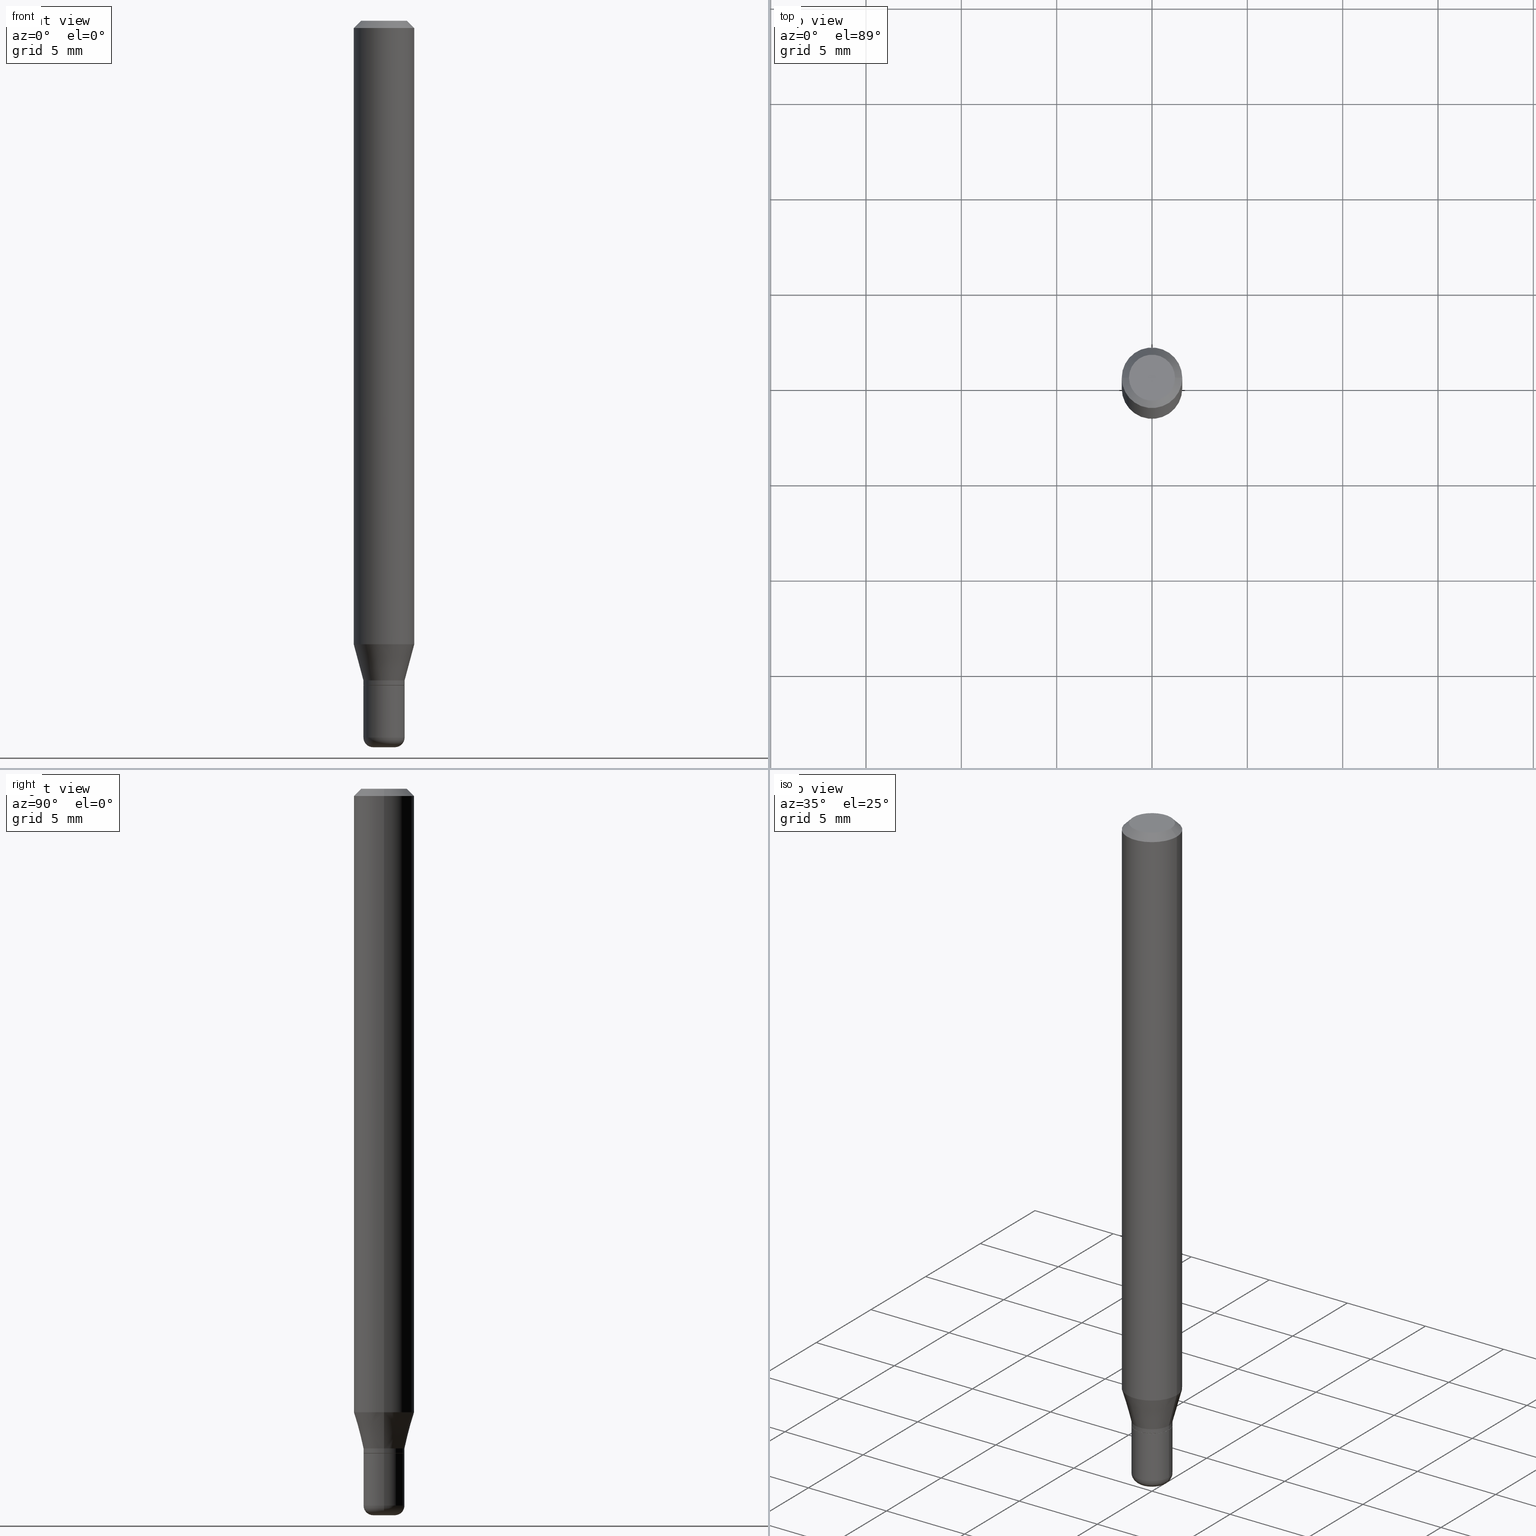
[diagram: canonical four-view strip — front | top / right | iso, engineering-drawing reading convention]
A machine part, canonical four-view strip (front | top / right | iso — engineering-drawing reading convention). The complete STEP part file that produces these views, byte-faithful:
ISO-10303-21;
HEADER;
FILE_DESCRIPTION (( 'STEP AP203' ),
    '1' );
FILE_NAME ('09198.STEP',
    '2024-02-29T23:17:37',
    ( '' ),
    ( '' ),
    'SwSTEP 2.0',
    'SolidWorks 2023',
    '' );
FILE_SCHEMA (( 'CONFIG_CONTROL_DESIGN' ));
ENDSEC;

DATA;
#1 = ORIENTED_EDGE ( 'NONE', *, *, #350, .T. ) ;
#2 =( CONVERSION_BASED_UNIT ( 'INCH', #153 ) LENGTH_UNIT ( ) NAMED_UNIT ( #40 ) );
#3 = CARTESIAN_POINT ( 'NONE',  ( 0.000000000000000000, 0.000000000000000000, 0.000000000000000000 ) ) ;
#4 = EDGE_CURVE ( 'NONE', #19, #285, #507, .T. ) ;
#5 = EDGE_LOOP ( 'NONE', ( #88, #128 ) ) ;
#6 = DIRECTION ( 'NONE',  ( 1.000000000000000000, -6.982962677686266711E-15, 4.876176775795935793E-29 ) ) ;
#7 = ORIENTED_EDGE ( 'NONE', *, *, #394, .T. ) ;
#8 = AXIS2_PLACEMENT_3D ( 'NONE', #168, #364, #315 ) ;
#9 = CYLINDRICAL_SURFACE ( 'NONE', #460, 0.04250000000000001693 ) ;
#10 = ORIENTED_EDGE ( 'NONE', *, *, #205, .F. ) ;
#11 = VERTEX_POINT ( 'NONE', #334 ) ;
#12 = PERSON_AND_ORGANIZATION ( #494, #333 ) ;
#13 = DIRECTION ( 'NONE',  ( -2.445468806185136597E-29, 3.491481338843145583E-15, 1.000000000000000000 ) ) ;
#14 = AXIS2_PLACEMENT_3D ( 'NONE', #197, #355, #515 ) ;
#15 = CARTESIAN_POINT ( 'NONE',  ( 3.619293833154002365E-29, -5.167392381487854879E-15, -1.479999999999999982 ) ) ;
#16 = ORIENTED_EDGE ( 'NONE', *, *, #129, .T. ) ;
#17 = DIRECTION ( 'NONE',  ( -2.445468806185136597E-29, 3.491481338843145583E-15, 1.000000000000000000 ) ) ;
#18 = EDGE_CURVE ( 'NONE', #169, #291, #143, .T. ) ;
#19 = VERTEX_POINT ( 'NONE', #298 ) ;
#20 = EDGE_LOOP ( 'NONE', ( #209, #210, #184, #46 ) ) ;
#21 = CIRCLE ( 'NONE', #310, 0.04200000000000001649 ) ;
#22 = AXIS2_PLACEMENT_3D ( 'NONE', #420, #253, #112 ) ;
#23 = EDGE_LOOP ( 'NONE', ( #257, #213, #276, #42 ) ) ;
#24 = EDGE_CURVE ( 'NONE', #169, #430, #331, .T. ) ;
#25 = CARTESIAN_POINT ( 'NONE',  ( 3.148196237364002379E-29, -4.494789868499541434E-15, -1.287358983848622795 ) ) ;
#26 = CALENDAR_DATE ( 2024, 29, 2 ) ;
#27 = CARTESIAN_POINT ( 'NONE',  ( 3.582686580359766038E-29, -5.359686688179453325E-15, -1.500000000000000222 ) ) ;
#28 = CARTESIAN_POINT ( 'NONE',  ( 3.668203209277632395E-31, -5.237222008264614861E-17, -0.01499999999999970281 ) ) ;
#29 = CLOSED_SHELL ( 'NONE', ( #188, #473, #299, #505, #279, #274 ) ) ;
#30 = FACE_OUTER_BOUND ( 'NONE', #471, .T. ) ;
#31 = VERTEX_POINT ( 'NONE', #421 ) ;
#32 = DIRECTION ( 'NONE',  ( 1.000000000000000000, -6.982962677686260400E-15, 0.000000000000000000 ) ) ;
#33 = LINE ( 'NONE', #517, #125 ) ;
#34 = DIRECTION ( 'NONE',  ( -2.445468806185136597E-29, 3.491481338843145583E-15, 1.000000000000000000 ) ) ;
#35 = AXIS2_PLACEMENT_3D ( 'NONE', #503, #61, #107 ) ;
#36 = VECTOR ( 'NONE', #319, 39.37007874015748143 ) ;
#37 = CC_DESIGN_APPROVAL ( #389, ( #313 ) ) ;
#38 = ORIENTED_EDGE ( 'NONE', *, *, #166, .F. ) ;
#39 = ADVANCED_FACE ( 'NONE', ( #173 ), #309, .T. ) ;
#40 = DIMENSIONAL_EXPONENTS ( 1.000000000000000000, 0.000000000000000000, 0.000000000000000000, 0.000000000000000000, 0.000000000000000000, 0.000000000000000000, 0.000000000000000000 ) ;
#41 = CARTESIAN_POINT ( 'NONE',  ( 3.619293833154002365E-29, -5.167392381487854879E-15, -1.479999999999999982 ) ) ;
#42 = ORIENTED_EDGE ( 'NONE', *, *, #74, .F. ) ;
#43 = VERTEX_POINT ( 'NONE', #498 ) ;
#44 = CARTESIAN_POINT ( 'NONE',  ( 0.04250000000000002387, -2.967759138016665521E-16, 2.072375129713273903E-30 ) ) ;
#45 = EDGE_CURVE ( 'NONE', #291, #94, #109, .T. ) ;
#46 = ORIENTED_EDGE ( 'NONE', *, *, #4, .F. ) ;
#47 = CIRCLE ( 'NONE', #216, 0.02000000000000003511 ) ;
#48 = COORDINATED_UNIVERSAL_TIME_OFFSET ( 5, 0, .BEHIND. ) ;
#49 = ORIENTED_EDGE ( 'NONE', *, *, #189, .T. ) ;
#50 = DIRECTION ( 'NONE',  ( 1.000000000000000000, 0.000000000000000000, 0.000000000000000000 ) ) ;
#51 = CC_DESIGN_PERSON_AND_ORGANIZATION_ASSIGNMENT ( #268, #65, ( #313 ) ) ;
#52 = ORIENTED_EDGE ( 'NONE', *, *, #189, .F. ) ;
#53 = DATE_AND_TIME ( #452, #323 ) ;
#54 = DIRECTION ( 'NONE',  ( 1.000000000000000000, -6.982962677686266711E-15, 4.876176775795935793E-29 ) ) ;
#55 = CC_DESIGN_PERSON_AND_ORGANIZATION_ASSIGNMENT ( #191, #261, ( #77 ) ) ;
#56 = CARTESIAN_POINT ( 'NONE',  ( 3.668203209277632395E-31, -5.237222008264614861E-17, -0.01499999999999970281 ) ) ;
#57 = CIRCLE ( 'NONE', #14, 0.04200000000000001649 ) ;
#58 = ADVANCED_FACE ( 'NONE', ( #337 ), #97, .T. ) ;
#59 = FACE_OUTER_BOUND ( 'NONE', #23, .T. ) ;
#60 = DIRECTION ( 'NONE',  ( 2.445468806185136597E-29, -3.491481338843145583E-15, -1.000000000000000000 ) ) ;
#61 = DIRECTION ( 'NONE',  ( -2.445468806185136597E-29, 3.491481338843145583E-15, 1.000000000000000000 ) ) ;
#62 = EDGE_CURVE ( 'NONE', #163, #43, #137, .T. ) ;
#63 = EDGE_CURVE ( 'NONE', #43, #94, #139, .T. ) ;
#64 = ORIENTED_EDGE ( 'NONE', *, *, #18, .F. ) ;
#65 = PERSON_AND_ORGANIZATION_ROLE ( 'classification_officer' ) ;
#66 = CIRCLE ( 'NONE', #208, 0.04249999999999999611 ) ;
#67 = CARTESIAN_POINT ( 'NONE',  ( -0.04250000000000003081, -4.252058789727899918E-15, -1.362000000000000099 ) ) ;
#68 = PERSON_AND_ORGANIZATION_ROLE ( 'design_supplier' ) ;
#69 = DIRECTION ( 'NONE',  ( -2.445468806185136597E-29, 3.491481338843145583E-15, 1.000000000000000000 ) ) ;
#70 = MANIFOLD_SOLID_BREP ( 'Body-Move/Copy2[2]', #264 ) ;
#71 = APPROVAL_STATUS ( 'not_yet_approved' ) ;
#72 = DIRECTION ( 'NONE',  ( 1.000000000000000000, -6.982962677686262766E-15, 0.000000000000000000 ) ) ;
#73 = PLANE ( 'NONE',  #22 ) ;
#74 = EDGE_CURVE ( 'NONE', #98, #11, #271, .T. ) ;
#75 = EDGE_CURVE ( 'NONE', #317, #98, #412, .T. ) ;
#76 = AXIS2_PLACEMENT_3D ( 'NONE', #366, #89, #281 ) ;
#77 = PRODUCT_DEFINITION_FORMATION_WITH_SPECIFIED_SOURCE ( 'ANY', '', #428, .NOT_KNOWN. ) ;
#78 = ORIENTED_EDGE ( 'NONE', *, *, #24, .T. ) ;
#79 = CARTESIAN_POINT ( 'NONE',  ( 0.000000000000000000, 0.000000000000000000, 0.000000000000000000 ) ) ;
#80 = DIRECTION ( 'NONE',  ( -2.445468806185136597E-29, 3.491481338843145583E-15, 1.000000000000000000 ) ) ;
#81 = CARTESIAN_POINT ( 'NONE',  ( 3.668203209277704895E-29, -5.237222008264718177E-15, -1.500000000000000222 ) ) ;
#82 = DIRECTION ( 'NONE',  ( 1.000000000000000000, -6.982962677686269866E-15, 0.000000000000000000 ) ) ;
#83 = EDGE_CURVE ( 'NONE', #31, #126, #21, .T. ) ;
#84 = ORIENTED_EDGE ( 'NONE', *, *, #113, .F. ) ;
#85 =( NAMED_UNIT ( * ) SI_UNIT ( $, .STERADIAN. ) SOLID_ANGLE_UNIT ( ) );
#86 = FACE_OUTER_BOUND ( 'NONE', #387, .T. ) ;
#87 = AXIS2_PLACEMENT_3D ( 'NONE', #27, #461, #457 ) ;
#88 = ORIENTED_EDGE ( 'NONE', *, *, #482, .F. ) ;
#89 = DIRECTION ( 'NONE',  ( -2.445468806185136597E-29, 3.491481338843145583E-15, 1.000000000000000000 ) ) ;
#90 = ORIENTED_EDGE ( 'NONE', *, *, #18, .T. ) ;
#91 = DIRECTION ( 'NONE',  ( -2.445468806185136877E-29, 3.491481338843145188E-15, 1.000000000000000000 ) ) ;
#92 = ORIENTED_EDGE ( 'NONE', *, *, #83, .T. ) ;
#93 = APPROVAL_ROLE ( '' ) ;
#94 = VERTEX_POINT ( 'NONE', #185 ) ;
#95 = AXIS2_PLACEMENT_3D ( 'NONE', #41, #478, #82 ) ;
#96 = APPROVAL_DATE_TIME ( #53, #504 ) ;
#97 = CYLINDRICAL_SURFACE ( 'NONE', #288, 0.04250000000000002387 ) ;
#98 = VERTEX_POINT ( 'NONE', #362 ) ;
#99 = EDGE_CURVE ( 'NONE', #220, #291, #346, .T. ) ;
#100 = CARTESIAN_POINT ( 'NONE',  ( 0.06250000000000000000, -4.888073874380378612E-16, -0.01499999999999970281 ) ) ;
#101 = CARTESIAN_POINT ( 'NONE',  ( -0.06250000000000000000, 4.440892098500626162E-16, -3.074334431409316114E-30 ) ) ;
#102 = CIRCLE ( 'NONE', #230, 0.02250000000000000264 ) ;
#103 = CONICAL_SURFACE ( 'NONE', #111, 0.04200000000000001649, 0.7853981633975507526 ) ;
#104 = CARTESIAN_POINT ( 'NONE',  ( 0.04200000000000001649, -5.083596829355619552E-15, -1.372000000000000108 ) ) ;
#105 = ORIENTED_EDGE ( 'NONE', *, *, #211, .F. ) ;
#106 = DATE_AND_TIME ( #297, #174 ) ;
#107 = DIRECTION ( 'NONE',  ( 1.000000000000000000, -6.982962677686272233E-15, 0.000000000000000000 ) ) ;
#108 = DIRECTION ( 'NONE',  ( 1.000000000000000000, -6.982962677686260400E-15, 0.000000000000000000 ) ) ;
#109 = CIRCLE ( 'NONE', #190, 0.06250000000000000000 ) ;
#110 = TOROIDAL_SURFACE ( 'NONE', #312, 0.02249999999999999917, 0.02000000000000003511 ) ;
#111 = AXIS2_PLACEMENT_3D ( 'NONE', #121, #325, #32 ) ;
#112 = DIRECTION ( 'NONE',  ( -1.000000000000000000, 6.982962677686265922E-15, -4.876176775795935793E-29 ) ) ;
#113 = EDGE_CURVE ( 'NONE', #98, #370, #316, .T. ) ;
#114 = DIRECTION ( 'NONE',  ( -2.445468806185136597E-29, 3.491481338843145583E-15, 1.000000000000000000 ) ) ;
#115 = ORIENTED_EDGE ( 'NONE', *, *, #369, .F. ) ;
#116 = DIRECTION ( 'NONE',  ( -2.445468806185136597E-29, 3.491481338843145583E-15, 1.000000000000000000 ) ) ;
#117 = CARTESIAN_POINT ( 'NONE',  ( 0.04249999999999999611, -5.087088310694462559E-15, -1.372000000000000108 ) ) ;
#118 = ORIENTED_EDGE ( 'NONE', *, *, #99, .T. ) ;
#119 = FACE_OUTER_BOUND ( 'NONE', #408, .T. ) ;
#120 = DIRECTION ( 'NONE',  ( 1.000000000000000000, -6.982962677686272233E-15, 0.000000000000000000 ) ) ;
#121 = CARTESIAN_POINT ( 'NONE',  ( 3.355183202086007133E-29, -4.790312396892795908E-15, -1.372000000000000108 ) ) ;
#122 = DIRECTION ( 'NONE',  ( 1.000000000000000000, -6.982962677686269866E-15, 4.883557194083114022E-29 ) ) ;
#123 = ORIENTED_EDGE ( 'NONE', *, *, #45, .F. ) ;
#124 = DIRECTION ( 'NONE',  ( 1.000000000000000000, -6.982962677686266711E-15, 4.876176775795935793E-29 ) ) ;
#125 = VECTOR ( 'NONE', #477, 39.37007874015748143 ) ;
#126 = VERTEX_POINT ( 'NONE', #518 ) ;
#127 = FACE_OUTER_BOUND ( 'NONE', #280, .T. ) ;
#128 = ORIENTED_EDGE ( 'NONE', *, *, #231, .F. ) ;
#129 = EDGE_CURVE ( 'NONE', #11, #98, #413, .T. ) ;
#130 = APPLICATION_PROTOCOL_DEFINITION ( 'international standard', 'config_control_design', 1994, #329 ) ;
#131 = TOROIDAL_SURFACE ( 'NONE', #341, 0.02249999999999999917, 0.02000000000000003511 ) ;
#132 = ORIENTED_EDGE ( 'NONE', *, *, #83, .F. ) ;
#133 = CC_DESIGN_PERSON_AND_ORGANIZATION_ASSIGNMENT ( #12, #330, ( #195 ) ) ;
#134 = ADVANCED_FACE ( 'NONE', ( #402 ), #202, .T. ) ;
#135 = ORIENTED_EDGE ( 'NONE', *, *, #62, .F. ) ;
#136 = DIRECTION ( 'NONE',  ( -2.445468806185136597E-29, 3.491481338843145583E-15, 1.000000000000000000 ) ) ;
#137 = LINE ( 'NONE', #222, #385 ) ;
#138 = CARTESIAN_POINT ( 'NONE',  ( 3.330728514024156148E-29, -4.755397583504364259E-15, -1.362000000000000099 ) ) ;
#139 = LINE ( 'NONE', #101, #164 ) ;
#140 = ADVANCED_FACE ( 'NONE', ( #300 ), #501, .T. ) ;
#141 = CONICAL_SURFACE ( 'NONE', #475, 0.04250000000000003081, 0.2617993877991497409 ) ;
#142 = DIRECTION ( 'NONE',  ( 1.000000000000000000, -6.982962677686266711E-15, 0.000000000000000000 ) ) ;
#143 = LINE ( 'NONE', #217, #356 ) ;
#144 = COORDINATED_UNIVERSAL_TIME_OFFSET ( 5, 0, .BEHIND. ) ;
#145 = CARTESIAN_POINT ( 'NONE',  ( 3.355183202086007133E-29, -4.790312396892795908E-15, -1.372000000000000108 ) ) ;
#146 = AXIS2_PLACEMENT_3D ( 'NONE', #512, #161, #234 ) ;
#147 = APPROVAL_STATUS ( 'not_yet_approved' ) ;
#148 = DIRECTION ( 'NONE',  ( -6.982962677686266711E-15, -1.000000000000000000, 3.491481338843145583E-15 ) ) ;
#149 = VERTEX_POINT ( 'NONE', #117 ) ;
#150 = DIRECTION ( 'NONE',  ( 1.000000000000000000, -6.982962677686276177E-15, 0.000000000000000000 ) ) ;
#151 = DIRECTION ( 'NONE',  ( 1.000000000000000000, -6.982962677686262766E-15, 0.000000000000000000 ) ) ;
#152 = VERTEX_POINT ( 'NONE', #406 ) ;
#153 = LENGTH_MEASURE_WITH_UNIT ( LENGTH_MEASURE( 0.02539999999999999897 ), #514 );
#154 = VECTOR ( 'NONE', #433, 39.37007874015748143 ) ;
#155 = AXIS2_PLACEMENT_3D ( 'NONE', #269, #381, #336 ) ;
#156 = CARTESIAN_POINT ( 'NONE',  ( 3.353960467682915452E-29, -4.788566656223375193E-15, -1.371500000000000163 ) ) ;
#157 = AXIS2_PLACEMENT_3D ( 'NONE', #145, #136, #392 ) ;
#158 = LOCAL_TIME ( 18, 17, 37.00000000000000000, #492 ) ;
#159 = PLANE ( 'NONE',  #8 ) ;
#160 = ORIENTED_EDGE ( 'NONE', *, *, #375, .F. ) ;
#161 = DIRECTION ( 'NONE',  ( -2.445468806185136597E-29, 3.491481338843145583E-15, 1.000000000000000000 ) ) ;
#162 = CARTESIAN_POINT ( 'NONE',  ( -0.04250000000000001693, 3.019806626980426993E-16, -2.090547413358335910E-30 ) ) ;
#163 = VERTEX_POINT ( 'NONE', #67 ) ;
#164 = VECTOR ( 'NONE', #260, 39.37007874015748143 ) ;
#165 = CIRCLE ( 'NONE', #76, 0.04250000000000003081 ) ;
#166 = EDGE_CURVE ( 'NONE', #220, #43, #265, .T. ) ;
#167 = ORIENTED_EDGE ( 'NONE', *, *, #262, .T. ) ;
#168 = CARTESIAN_POINT ( 'NONE',  ( 3.355183202086007133E-29, -4.790312396892795908E-15, -1.372000000000000108 ) ) ;
#169 = VERTEX_POINT ( 'NONE', #263 ) ;
#170 = DIRECTION ( 'NONE',  ( 0.000000000000000000, 0.000000000000000000, 1.000000000000000000 ) ) ;
#171 = ORIENTED_EDGE ( 'NONE', *, *, #369, .T. ) ;
#172 = EDGE_CURVE ( 'NONE', #126, #19, #235, .T. ) ;
#173 = FACE_OUTER_BOUND ( 'NONE', #479, .T. ) ;
#174 = LOCAL_TIME ( 18, 17, 37.00000000000000000, #499 ) ;
#175 = DIRECTION ( 'NONE',  ( 0.7071067811866199593, -2.468850131083015945E-15, 0.7071067811864750752 ) ) ;
#176 = DIRECTION ( 'NONE',  ( -1.000000000000000000, 6.982962677686266711E-15, 0.000000000000000000 ) ) ;
#177 = DIRECTION ( 'NONE',  ( -2.445468806185136597E-29, 3.491481338843145583E-15, 1.000000000000000000 ) ) ;
#178 = CARTESIAN_POINT ( 'NONE',  ( -6.680649051745406845E-45, 9.538196290434862081E-31, 2.731847993664263218E-16 ) ) ;
#179 = DATE_AND_TIME ( #26, #396 ) ;
#180 = EDGE_LOOP ( 'NONE', ( #483, #456, #118, #115 ) ) ;
#181 = AXIS2_PLACEMENT_3D ( 'NONE', #294, #436, #497 ) ;
#182 = SHAPE_DEFINITION_REPRESENTATION ( #259, #458 ) ;
#183 = CC_DESIGN_APPROVAL ( #504, ( #195 ) ) ;
#184 = ORIENTED_EDGE ( 'NONE', *, *, #343, .T. ) ;
#185 = CARTESIAN_POINT ( 'NONE',  ( -0.06250000000000000000, -1.829491834441030654E-15, -0.01499999999999970281 ) ) ;
#186 = PERSON_AND_ORGANIZATION ( #494, #333 ) ;
#187 = CARTESIAN_POINT ( 'NONE',  ( 3.355183202086007133E-29, -4.790312396892795908E-15, -1.372000000000000108 ) ) ;
#188 = ADVANCED_FACE ( 'NONE', ( #439 ), #131, .T. ) ;
#189 = EDGE_CURVE ( 'NONE', #163, #242, #395, .T. ) ;
#190 = AXIS2_PLACEMENT_3D ( 'NONE', #56, #380, #142 ) ;
#191 = PERSON_AND_ORGANIZATION ( #494, #333 ) ;
#192 = CARTESIAN_POINT ( 'NONE',  ( 0.02249999999999999917, -5.324509041735796511E-15, -1.479999999999999982 ) ) ;
#193 = VECTOR ( 'NONE', #91, 39.37007874015748143 ) ;
#194 = CARTESIAN_POINT ( 'NONE',  ( 0.04250000000000003081, -5.052173497306030910E-15, -1.362000000000000099 ) ) ;
#195 = PRODUCT_DEFINITION ( 'UNKNOWN', '', #77, #376 ) ;
#196 = EDGE_CURVE ( 'NONE', #126, #31, #57, .T. ) ;
#197 = CARTESIAN_POINT ( 'NONE',  ( 3.355183202086007133E-29, -4.790312396892795908E-15, -1.372000000000000108 ) ) ;
#198 = LINE ( 'NONE', #44, #193 ) ;
#199 = CIRCLE ( 'NONE', #467, 0.06250000000000000000 ) ;
#200 = LINE ( 'NONE', #278, #516 ) ;
#201 = ORIENTED_EDGE ( 'NONE', *, *, #63, .T. ) ;
#202 = CYLINDRICAL_SURFACE ( 'NONE', #451, 0.04250000000000002387 ) ;
#203 = ORIENTED_EDGE ( 'NONE', *, *, #205, .T. ) ;
#204 = DIRECTION ( 'NONE',  ( -2.445468806185136597E-29, 3.491481338843145583E-15, 1.000000000000000000 ) ) ;
#205 = EDGE_CURVE ( 'NONE', #285, #19, #295, .T. ) ;
#206 = EDGE_LOOP ( 'NONE', ( #416, #167 ) ) ;
#207 = FACE_OUTER_BOUND ( 'NONE', #251, .T. ) ;
#208 = AXIS2_PLACEMENT_3D ( 'NONE', #187, #17, #150 ) ;
#209 = ORIENTED_EDGE ( 'NONE', *, *, #172, .F. ) ;
#210 = ORIENTED_EDGE ( 'NONE', *, *, #196, .T. ) ;
#211 = EDGE_CURVE ( 'NONE', #430, #94, #200, .T. ) ;
#212 = PERSON_AND_ORGANIZATION ( #494, #333 ) ;
#213 = ORIENTED_EDGE ( 'NONE', *, *, #231, .T. ) ;
#214 = PERSON_AND_ORGANIZATION ( #494, #333 ) ;
#215 = DIRECTION ( 'NONE',  ( -2.445468806185136597E-29, 3.491481338843145583E-15, 1.000000000000000000 ) ) ;
#216 = AXIS2_PLACEMENT_3D ( 'NONE', #192, #148, #305 ) ;
#217 = CARTESIAN_POINT ( 'NONE',  ( 0.06250000000000000000, -4.811533449433669144E-16, -0.01499999999999970281 ) ) ;
#218 = PRODUCT_RELATED_PRODUCT_CATEGORY ( 'detail', '', ( #428 ) ) ;
#219 = CARTESIAN_POINT ( 'NONE',  ( -0.02250000000000000264, -4.971380805754254157E-15, -1.500000000000000222 ) ) ;
#220 = VERTEX_POINT ( 'NONE', #442 ) ;
#221 = ADVANCED_FACE ( 'NONE', ( #86 ), #237, .F. ) ;
#222 = CARTESIAN_POINT ( 'NONE',  ( -0.04250000000000003081, -4.453416920806321806E-15, -1.362000000000000099 ) ) ;
#223 = ORIENTED_EDGE ( 'NONE', *, *, #239, .F. ) ;
#224 = AXIS2_PLACEMENT_3D ( 'NONE', #476, #233, #108 ) ;
#225 = APPROVAL_PERSON_ORGANIZATION ( #212, #504, #93 ) ;
#226 = DIRECTION ( 'NONE',  ( -0.7071067811866199593, 7.493145998870616062E-15, 0.7071067811864750752 ) ) ;
#227 = CARTESIAN_POINT ( 'NONE',  ( 0.04250000000000003081, -5.052173497306030910E-15, -1.362000000000000099 ) ) ;
#228 = DIRECTION ( 'NONE',  ( 1.000000000000000000, -6.982962677686266711E-15, 0.000000000000000000 ) ) ;
#229 = FACE_OUTER_BOUND ( 'NONE', #206, .T. ) ;
#230 = AXIS2_PLACEMENT_3D ( 'NONE', #81, #204, #446 ) ;
#231 = EDGE_CURVE ( 'NONE', #317, #152, #322, .T. ) ;
#232 = FACE_OUTER_BOUND ( 'NONE', #247, .T. ) ;
#233 = DIRECTION ( 'NONE',  ( -2.445468806185136597E-29, 3.491481338843145583E-15, 1.000000000000000000 ) ) ;
#234 = DIRECTION ( 'NONE',  ( 1.000000000000000000, -6.982962677686266711E-15, 4.852736867747365086E-29 ) ) ;
#235 = LINE ( 'NONE', #275, #437 ) ;
#236 = ORIENTED_EDGE ( 'NONE', *, *, #453, .F. ) ;
#237 = PLANE ( 'NONE',  #181 ) ;
#238 = ORIENTED_EDGE ( 'NONE', *, *, #74, .T. ) ;
#239 = EDGE_CURVE ( 'NONE', #149, #370, #66, .T. ) ;
#240 = EDGE_LOOP ( 'NONE', ( #449, #511, #443, #52 ) ) ;
#241 = FACE_OUTER_BOUND ( 'NONE', #20, .T. ) ;
#242 = VERTEX_POINT ( 'NONE', #227 ) ;
#243 = APPLICATION_PROTOCOL_DEFINITION ( 'international standard', 'config_control_design', 1994, #417 ) ;
#244 = AXIS2_PLACEMENT_3D ( 'NONE', #339, #296, #383 ) ;
#245 = ADVANCED_FACE ( 'NONE', ( #30 ), #141, .T. ) ;
#246 = CIRCLE ( 'NONE', #157, 0.04249999999999999611 ) ;
#247 = EDGE_LOOP ( 'NONE', ( #84, #238, #326, #427 ) ) ;
#248 = CARTESIAN_POINT ( 'NONE',  ( 3.668203209277632395E-31, -5.237222008264614861E-17, -0.01499999999999970281 ) ) ;
#249 = DATE_AND_TIME ( #455, #158 ) ;
#250 = DIRECTION ( 'NONE',  ( 1.000000000000000000, -6.982962677686267499E-15, 0.000000000000000000 ) ) ;
#251 = EDGE_LOOP ( 'NONE', ( #135, #49, #328, #374 ) ) ;
#252 = APPROVAL_STATUS ( 'not_yet_approved' ) ;
#253 = DIRECTION ( 'NONE',  ( 2.438088387897960049E-29, -3.491481338843145188E-15, -1.000000000000000000 ) ) ;
#254 = AXIS2_PLACEMENT_3D ( 'NONE', #25, #513, #151 ) ;
#255 = CARTESIAN_POINT ( 'NONE',  ( 3.619293833154002365E-29, -5.167392381487854879E-15, -1.479999999999999982 ) ) ;
#256 = FACE_OUTER_BOUND ( 'NONE', #462, .T. ) ;
#257 = ORIENTED_EDGE ( 'NONE', *, *, #75, .F. ) ;
#258 = CALENDAR_DATE ( 2024, 29, 2 ) ;
#259 = PRODUCT_DEFINITION_SHAPE ( 'NONE', 'NONE',  #195 ) ;
#260 = DIRECTION ( 'NONE',  ( -2.445468806185136877E-29, 3.491481338843145188E-15, 1.000000000000000000 ) ) ;
#261 = PERSON_AND_ORGANIZATION_ROLE ( 'creator' ) ;
#262 = EDGE_CURVE ( 'NONE', #370, #149, #246, .T. ) ;
#263 = CARTESIAN_POINT ( 'NONE',  ( 0.04750000000000000749, -4.035134999187568762E-16, 2.731847993664288856E-16 ) ) ;
#264 = CLOSED_SHELL ( 'NONE', ( #58, #140, #39, #447, #245, #410, #306, #351, #221, #488, #508, #134 ) ) ;
#265 = CIRCLE ( 'NONE', #254, 0.06250000000000000000 ) ;
#266 = CC_DESIGN_APPROVAL ( #335, ( #77 ) ) ;
#267 = CARTESIAN_POINT ( 'NONE',  ( -0.04250000000000002387, 3.019806626980427486E-16, -2.090547413358336260E-30 ) ) ;
#268 = PERSON_AND_ORGANIZATION ( #494, #333 ) ;
#269 = CARTESIAN_POINT ( 'NONE',  ( 3.668203209277632395E-31, -5.237222008264614861E-17, -0.01499999999999970281 ) ) ;
#270 = ORIENTED_EDGE ( 'NONE', *, *, #172, .T. ) ;
#271 = CIRCLE ( 'NONE', #340, 0.04250000000000003081 ) ;
#272 = CYLINDRICAL_SURFACE ( 'NONE', #379, 0.04250000000000001693 ) ;
#273 = VECTOR ( 'NONE', #506, 39.37007874015748143 ) ;
#274 = ADVANCED_FACE ( 'NONE', ( #307 ), #292, .F. ) ;
#275 = CARTESIAN_POINT ( 'NONE',  ( -0.04200000000000001649, -4.491884447873554354E-15, -1.372000000000000108 ) ) ;
#276 = ORIENTED_EDGE ( 'NONE', *, *, #375, .T. ) ;
#277 = DIRECTION ( 'NONE',  ( -2.445468806185136597E-29, 3.491481338843145583E-15, 1.000000000000000000 ) ) ;
#278 = CARTESIAN_POINT ( 'NONE',  ( -0.06250000000000000000, 3.840629472727455270E-16, -0.01499999999999970281 ) ) ;
#279 = ADVANCED_FACE ( 'NONE', ( #59 ), #110, .T. ) ;
#280 = EDGE_LOOP ( 'NONE', ( #353, #201, #123, #324 ) ) ;
#281 = DIRECTION ( 'NONE',  ( 1.000000000000000000, -6.982962677686269866E-15, 0.000000000000000000 ) ) ;
#282 = AXIS2_PLACEMENT_3D ( 'NONE', #484, #116, #438 ) ;
#283 = ORIENTED_EDGE ( 'NONE', *, *, #343, .F. ) ;
#284 = CARTESIAN_POINT ( 'NONE',  ( 0.000000000000000000, 0.000000000000000000, 0.000000000000000000 ) ) ;
#285 = VERTEX_POINT ( 'NONE', #347 ) ;
#286 = EDGE_CURVE ( 'NONE', #242, #220, #338, .T. ) ;
#287 = EDGE_LOOP ( 'NONE', ( #92, #270, #10, #283 ) ) ;
#288 = AXIS2_PLACEMENT_3D ( 'NONE', #418, #493, #496 ) ;
#289 = AXIS2_PLACEMENT_3D ( 'NONE', #470, #114, #250 ) ;
#290 = ORIENTED_EDGE ( 'NONE', *, *, #196, .F. ) ;
#291 = VERTEX_POINT ( 'NONE', #100 ) ;
#292 = PLANE ( 'NONE',  #87 ) ;
#293 = DIRECTION ( 'NONE',  ( 1.000000000000000000, -6.982962677686266711E-15, 4.852736867747365086E-29 ) ) ;
#294 = CARTESIAN_POINT ( 'NONE',  ( 3.316907271900976589E-16, 0.04750000000000000749, -2.925296391183627249E-17 ) ) ;
#295 = CIRCLE ( 'NONE', #367, 0.04250000000000001693 ) ;
#296 = DIRECTION ( 'NONE',  ( 7.105427357601001859E-15, 1.000000000000000000, -3.491481338843145583E-15 ) ) ;
#297 = CALENDAR_DATE ( 2024, 29, 2 ) ;
#298 = CARTESIAN_POINT ( 'NONE',  ( -0.04250000000000001693, -4.486585993525331952E-15, -1.371500000000000163 ) ) ;
#299 = ADVANCED_FACE ( 'NONE', ( #229 ), #73, .F. ) ;
#300 = FACE_OUTER_BOUND ( 'NONE', #287, .T. ) ;
#301 = AXIS2_PLACEMENT_3D ( 'NONE', #178, #13, #293 ) ;
#302 = VECTOR ( 'NONE', #398, 39.37007874015748143 ) ;
#303 = LINE ( 'NONE', #104, #386 ) ;
#304 = CC_DESIGN_DATE_AND_TIME_ASSIGNMENT ( #106, #344, ( #313 ) ) ;
#305 = DIRECTION ( 'NONE',  ( 1.000000000000000000, -6.982962677686272233E-15, 0.000000000000000000 ) ) ;
#306 = ADVANCED_FACE ( 'NONE', ( #352 ), #435, .T. ) ;
#307 = FACE_OUTER_BOUND ( 'NONE', #5, .T. ) ;
#308 = CARTESIAN_POINT ( 'NONE',  ( 3.330728514024156148E-29, -4.755397583504364259E-15, -1.362000000000000099 ) ) ;
#309 = CONICAL_SURFACE ( 'NONE', #500, 0.06250000000000000000, 0.7853981633974488341 ) ;
#310 = AXIS2_PLACEMENT_3D ( 'NONE', #502, #277, #390 ) ;
#311 =( NAMED_UNIT ( * ) PLANE_ANGLE_UNIT ( ) SI_UNIT ( $, .RADIAN. ) );
#312 = AXIS2_PLACEMENT_3D ( 'NONE', #15, #215, #378 ) ;
#313 = SECURITY_CLASSIFICATION ( '', '', #431 ) ;
#314 = DIRECTION ( 'NONE',  ( -2.445468806185136597E-29, 3.491481338843145583E-15, 1.000000000000000000 ) ) ;
#315 = DIRECTION ( 'NONE',  ( 1.000000000000000000, -6.982962677686265922E-15, 4.876176775795935793E-29 ) ) ;
#316 = LINE ( 'NONE', #162, #36 ) ;
#317 = VERTEX_POINT ( 'NONE', #219 ) ;
#318 = FACE_OUTER_BOUND ( 'NONE', #445, .T. ) ;
#319 = DIRECTION ( 'NONE',  ( -2.445468806185136877E-29, 3.491481338843145188E-15, 1.000000000000000000 ) ) ;
#320 = ORIENTED_EDGE ( 'NONE', *, *, #394, .F. ) ;
#321 = CYLINDRICAL_SURFACE ( 'NONE', #422, 0.06250000000000000000 ) ;
#322 = CIRCLE ( 'NONE', #289, 0.02250000000000000264 ) ;
#323 = LOCAL_TIME ( 18, 17, 37.00000000000000000, #48 ) ;
#324 = ORIENTED_EDGE ( 'NONE', *, *, #99, .F. ) ;
#325 = DIRECTION ( 'NONE',  ( -2.445468806185136597E-29, 3.491481338843145583E-15, 1.000000000000000000 ) ) ;
#326 = ORIENTED_EDGE ( 'NONE', *, *, #448, .T. ) ;
#327 = MECHANICAL_CONTEXT ( 'NONE', #329, 'mechanical' ) ;
#328 = ORIENTED_EDGE ( 'NONE', *, *, #286, .T. ) ;
#329 = APPLICATION_CONTEXT ( 'configuration controlled 3d designs of mechanical parts and assemblies' ) ;
#330 = PERSON_AND_ORGANIZATION_ROLE ( 'creator' ) ;
#331 = CIRCLE ( 'NONE', #301, 0.04750000000000000749 ) ;
#332 = AXIS2_PLACEMENT_3D ( 'NONE', #308, #80, #400 ) ;
#333 = ORGANIZATION ( 'UNSPECIFIED', 'UNSPECIFIED', '' ) ;
#334 = CARTESIAN_POINT ( 'NONE',  ( 0.04250000000000003081, -5.464168295289522318E-15, -1.479999999999999982 ) ) ;
#335 = APPROVAL ( #147, 'UNSPECIFIED' ) ;
#336 = DIRECTION ( 'NONE',  ( -1.000000000000000000, 6.982962677686266711E-15, 0.000000000000000000 ) ) ;
#337 = FACE_OUTER_BOUND ( 'NONE', #464, .T. ) ;
#338 = LINE ( 'NONE', #194, #273 ) ;
#339 = CARTESIAN_POINT ( 'NONE',  ( -0.02249999999999999917, -5.007520265941832589E-15, -1.479999999999999982 ) ) ;
#340 = AXIS2_PLACEMENT_3D ( 'NONE', #255, #425, #382 ) ;
#341 = AXIS2_PLACEMENT_3D ( 'NONE', #474, #34, #122 ) ;
#342 = ORIENTED_EDGE ( 'NONE', *, *, #286, .F. ) ;
#343 = EDGE_CURVE ( 'NONE', #31, #285, #303, .T. ) ;
#344 = DATE_TIME_ROLE ( 'classification_date' ) ;
#345 = ORIENTED_EDGE ( 'NONE', *, *, #468, .F. ) ;
#346 = LINE ( 'NONE', #440, #154 ) ;
#347 = CARTESIAN_POINT ( 'NONE',  ( 0.04250000000000001693, -5.085342570025041844E-15, -1.371500000000000163 ) ) ;
#348 = AXIS2_PLACEMENT_3D ( 'NONE', #426, #69, #72 ) ;
#349 = DIRECTION ( 'NONE',  ( -2.445468806185136597E-29, 3.491481338843145583E-15, 1.000000000000000000 ) ) ;
#350 = EDGE_CURVE ( 'NONE', #19, #163, #469, .T. ) ;
#351 = ADVANCED_FACE ( 'NONE', ( #256 ), #432, .T. ) ;
#352 = FACE_OUTER_BOUND ( 'NONE', #180, .T. ) ;
#353 = ORIENTED_EDGE ( 'NONE', *, *, #166, .T. ) ;
#354 = DIRECTION ( 'NONE',  ( -2.445468806185136597E-29, 3.491481338843145583E-15, 1.000000000000000000 ) ) ;
#355 = DIRECTION ( 'NONE',  ( -2.445468806185136597E-29, 3.491481338843145583E-15, 1.000000000000000000 ) ) ;
#356 = VECTOR ( 'NONE', #454, 39.37007874015748143 ) ;
#357 = DIRECTION ( 'NONE',  ( 1.000000000000000000, -6.982962677686266711E-15, 4.876176775795935793E-29 ) ) ;
#358 = EDGE_CURVE ( 'NONE', #43, #220, #491, .T. ) ;
#359 = CC_DESIGN_SECURITY_CLASSIFICATION ( #313, ( #77 ) ) ;
#360 = DIRECTION ( 'NONE',  ( -0.7071067811865479058, 2.468850131082261005E-15, -0.7071067811865471286 ) ) ;
#361 = ORIENTED_EDGE ( 'NONE', *, *, #448, .F. ) ;
#362 = CARTESIAN_POINT ( 'NONE',  ( -0.04250000000000003081, -4.676871726492283729E-15, -1.479999999999999982 ) ) ;
#363 = ORIENTED_EDGE ( 'NONE', *, *, #482, .T. ) ;
#364 = DIRECTION ( 'NONE',  ( -2.438088387897960049E-29, 3.491481338843145188E-15, 1.000000000000000000 ) ) ;
#365 = ORIENTED_EDGE ( 'NONE', *, *, #62, .T. ) ;
#366 = CARTESIAN_POINT ( 'NONE',  ( 3.330728514024156148E-29, -4.755397583504364259E-15, -1.362000000000000099 ) ) ;
#367 = AXIS2_PLACEMENT_3D ( 'NONE', #156, #314, #120 ) ;
#368 = APPROVAL_PERSON_ORGANIZATION ( #434, #389, #391 ) ;
#369 = EDGE_CURVE ( 'NONE', #94, #291, #199, .T. ) ;
#370 = VERTEX_POINT ( 'NONE', #393 ) ;
#371 = ORIENTED_EDGE ( 'NONE', *, *, #45, .T. ) ;
#372 = PERSON_AND_ORGANIZATION ( #494, #333 ) ;
#373 = CC_DESIGN_DATE_AND_TIME_ASSIGNMENT ( #249, #419, ( #195 ) ) ;
#374 = ORIENTED_EDGE ( 'NONE', *, *, #358, .F. ) ;
#375 = EDGE_CURVE ( 'NONE', #152, #11, #47, .T. ) ;
#376 = DESIGN_CONTEXT ( 'detailed design', #417, 'design' ) ;
#377 = CIRCLE ( 'NONE', #146, 0.04750000000000000749 ) ;
#378 = DIRECTION ( 'NONE',  ( 1.000000000000000000, -6.982962677686269866E-15, 4.883557194083114022E-29 ) ) ;
#379 = AXIS2_PLACEMENT_3D ( 'NONE', #79, #399, #6 ) ;
#380 = DIRECTION ( 'NONE',  ( -2.445468806185136597E-29, 3.491481338843145583E-15, 1.000000000000000000 ) ) ;
#381 = DIRECTION ( 'NONE',  ( 2.445468806185136597E-29, -3.491481338843145583E-15, -1.000000000000000000 ) ) ;
#382 = DIRECTION ( 'NONE',  ( 1.000000000000000000, -6.982962677686269866E-15, 0.000000000000000000 ) ) ;
#383 = DIRECTION ( 'NONE',  ( -1.000000000000000000, 7.105427357601009747E-15, 0.000000000000000000 ) ) ;
#384 = COORDINATED_UNIVERSAL_TIME_OFFSET ( 5, 0, .BEHIND. ) ;
#385 = VECTOR ( 'NONE', #459, 39.37007874015748143 ) ;
#386 = VECTOR ( 'NONE', #175, 39.37007874015748143 ) ;
#387 = EDGE_LOOP ( 'NONE', ( #7, #78 ) ) ;
#388 =( GEOMETRIC_REPRESENTATION_CONTEXT ( 3 ) GLOBAL_UNCERTAINTY_ASSIGNED_CONTEXT ( ( #489 ) ) GLOBAL_UNIT_ASSIGNED_CONTEXT ( ( #2, #311, #85 ) ) REPRESENTATION_CONTEXT ( 'NONE', 'WORKASPACE' ) );
#389 = APPROVAL ( #71, 'UNSPECIFIED' ) ;
#390 = DIRECTION ( 'NONE',  ( 1.000000000000000000, -6.982962677686260400E-15, 0.000000000000000000 ) ) ;
#391 = APPROVAL_ROLE ( '' ) ;
#392 = DIRECTION ( 'NONE',  ( 1.000000000000000000, -6.982962677686276177E-15, 0.000000000000000000 ) ) ;
#393 = CARTESIAN_POINT ( 'NONE',  ( -0.04249999999999999611, -4.676871726492283729E-15, -1.372000000000000108 ) ) ;
#394 = EDGE_CURVE ( 'NONE', #430, #169, #377, .T. ) ;
#395 = CIRCLE ( 'NONE', #332, 0.04250000000000003081 ) ;
#396 = LOCAL_TIME ( 18, 17, 37.00000000000000000, #384 ) ;
#397 = APPROVAL_ROLE ( '' ) ;
#398 = DIRECTION ( 'NONE',  ( -2.445468806185136877E-29, 3.491481338843145188E-15, 1.000000000000000000 ) ) ;
#399 = DIRECTION ( 'NONE',  ( -2.445468806185136597E-29, 3.491481338843145583E-15, 1.000000000000000000 ) ) ;
#400 = DIRECTION ( 'NONE',  ( 1.000000000000000000, -6.982962677686269866E-15, 0.000000000000000000 ) ) ;
#401 = CARTESIAN_POINT ( 'NONE',  ( -0.04750000000000000749, 3.578768372314221353E-16, 2.731847993664239060E-16 ) ) ;
#402 = FACE_OUTER_BOUND ( 'NONE', #240, .T. ) ;
#403 = ORIENTED_EDGE ( 'NONE', *, *, #113, .T. ) ;
#404 = AXIS2_PLACEMENT_3D ( 'NONE', #423, #177, #54 ) ;
#405 = AXIS2_PLACEMENT_3D ( 'NONE', #495, #170, #50 ) ;
#406 = CARTESIAN_POINT ( 'NONE',  ( 0.02250000000000000264, -5.394338668512659809E-15, -1.500000000000000222 ) ) ;
#407 = ORIENTED_EDGE ( 'NONE', *, *, #24, .F. ) ;
#408 = EDGE_LOOP ( 'NONE', ( #132, #290 ) ) ;
#409 = DIRECTION ( 'NONE',  ( -2.445468806185136597E-29, 3.491481338843145583E-15, 1.000000000000000000 ) ) ;
#410 = ADVANCED_FACE ( 'NONE', ( #207 ), #509, .T. ) ;
#411 = ORIENTED_EDGE ( 'NONE', *, *, #129, .F. ) ;
#412 = CIRCLE ( 'NONE', #244, 0.02000000000000003511 ) ;
#413 = CIRCLE ( 'NONE', #95, 0.04250000000000003081 ) ;
#414 = MANIFOLD_SOLID_BREP ( 'Body-Move/Copy2[1]', #29 ) ;
#415 = LOCAL_TIME ( 18, 17, 37.00000000000000000, #144 ) ;
#416 = ORIENTED_EDGE ( 'NONE', *, *, #239, .T. ) ;
#417 = APPLICATION_CONTEXT ( 'configuration controlled 3d designs of mechanical parts and assemblies' ) ;
#418 = CARTESIAN_POINT ( 'NONE',  ( 0.000000000000000000, 0.000000000000000000, 0.000000000000000000 ) ) ;
#419 = DATE_TIME_ROLE ( 'creation_date' ) ;
#420 = CARTESIAN_POINT ( 'NONE',  ( 2.967759138016998322E-16, 0.04249999999999520828, -1.372000000000000330 ) ) ;
#421 = CARTESIAN_POINT ( 'NONE',  ( 0.04200000000000001649, -5.083596829355619552E-15, -1.372000000000000108 ) ) ;
#422 = AXIS2_PLACEMENT_3D ( 'NONE', #441, #409, #124 ) ;
#423 = CARTESIAN_POINT ( 'NONE',  ( 0.000000000000000000, 0.000000000000000000, 0.000000000000000000 ) ) ;
#424 = APPROVAL_PERSON_ORGANIZATION ( #214, #335, #397 ) ;
#425 = DIRECTION ( 'NONE',  ( -2.445468806185136597E-29, 3.491481338843145583E-15, 1.000000000000000000 ) ) ;
#426 = CARTESIAN_POINT ( 'NONE',  ( 3.148196237364002379E-29, -4.494789868499541434E-15, -1.287358983848622795 ) ) ;
#427 = ORIENTED_EDGE ( 'NONE', *, *, #262, .F. ) ;
#428 = PRODUCT ( '09198', '09198', '', ( #327 ) ) ;
#429 = DATE_AND_TIME ( #258, #415 ) ;
#430 = VERTEX_POINT ( 'NONE', #401 ) ;
#431 = SECURITY_CLASSIFICATION_LEVEL ( 'unclassified' ) ;
#432 = CONICAL_SURFACE ( 'NONE', #155, 0.06250000000000000000, 0.7853981633974488341 ) ;
#433 = DIRECTION ( 'NONE',  ( -2.445468806185136877E-29, 3.491481338843145188E-15, 1.000000000000000000 ) ) ;
#434 = PERSON_AND_ORGANIZATION ( #494, #333 ) ;
#435 = CYLINDRICAL_SURFACE ( 'NONE', #404, 0.06250000000000000000 ) ;
#436 = DIRECTION ( 'NONE',  ( 2.438088387897960049E-29, -3.491481338843145188E-15, -1.000000000000000000 ) ) ;
#437 = VECTOR ( 'NONE', #226, 39.37007874015748143 ) ;
#438 = DIRECTION ( 'NONE',  ( 1.000000000000000000, -6.982962677686269866E-15, 0.000000000000000000 ) ) ;
#439 = FACE_OUTER_BOUND ( 'NONE', #486, .T. ) ;
#440 = CARTESIAN_POINT ( 'NONE',  ( 0.06250000000000000000, -4.364351673553916694E-16, 3.047610484872459871E-30 ) ) ;
#441 = CARTESIAN_POINT ( 'NONE',  ( 0.000000000000000000, 0.000000000000000000, 0.000000000000000000 ) ) ;
#442 = CARTESIAN_POINT ( 'NONE',  ( 0.06250000000000000000, -4.931225035854932314E-15, -1.287358983848622795 ) ) ;
#443 = ORIENTED_EDGE ( 'NONE', *, *, #468, .T. ) ;
#444 = CC_DESIGN_PERSON_AND_ORGANIZATION_ASSIGNMENT ( #372, #487, ( #428 ) ) ;
#445 = EDGE_LOOP ( 'NONE', ( #16, #403, #223, #361 ) ) ;
#446 = DIRECTION ( 'NONE',  ( 1.000000000000000000, -6.982962677686267499E-15, 0.000000000000000000 ) ) ;
#447 = ADVANCED_FACE ( 'NONE', ( #127 ), #321, .T. ) ;
#448 = EDGE_CURVE ( 'NONE', #11, #149, #33, .T. ) ;
#449 = ORIENTED_EDGE ( 'NONE', *, *, #350, .F. ) ;
#450 = ORIENTED_EDGE ( 'NONE', *, *, #211, .T. ) ;
#451 = AXIS2_PLACEMENT_3D ( 'NONE', #3, #481, #465 ) ;
#452 = CALENDAR_DATE ( 2024, 29, 2 ) ;
#453 = EDGE_CURVE ( 'NONE', #242, #163, #165, .T. ) ;
#454 = DIRECTION ( 'NONE',  ( 0.7071067811865479058, -7.319954787623257623E-15, -0.7071067811865471286 ) ) ;
#455 = CALENDAR_DATE ( 2024, 29, 2 ) ;
#456 = ORIENTED_EDGE ( 'NONE', *, *, #358, .T. ) ;
#457 = DIRECTION ( 'NONE',  ( 1.000000000000000000, -6.982962677686265922E-15, 4.876176775795935793E-29 ) ) ;
#458 = ADVANCED_BREP_SHAPE_REPRESENTATION ( '09198', ( #414, #70, #405 ), #388 ) ;
#459 = DIRECTION ( 'NONE',  ( -0.2588190451025210725, 5.211531920934548675E-15, 0.9659258262890682012 ) ) ;
#460 = AXIS2_PLACEMENT_3D ( 'NONE', #284, #354, #357 ) ;
#461 = DIRECTION ( 'NONE',  ( -2.438088387897960049E-29, 3.491481338843145188E-15, 1.000000000000000000 ) ) ;
#462 = EDGE_LOOP ( 'NONE', ( #64, #320, #450, #171 ) ) ;
#463 = APPROVAL_DATE_TIME ( #179, #335 ) ;
#464 = EDGE_LOOP ( 'NONE', ( #203, #1, #236, #345 ) ) ;
#465 = DIRECTION ( 'NONE',  ( 1.000000000000000000, -6.982962677686267499E-15, 4.876176775795935793E-29 ) ) ;
#466 = APPROVAL_DATE_TIME ( #429, #389 ) ;
#467 = AXIS2_PLACEMENT_3D ( 'NONE', #28, #349, #228 ) ;
#468 = EDGE_CURVE ( 'NONE', #285, #242, #198, .T. ) ;
#469 = LINE ( 'NONE', #267, #302 ) ;
#470 = CARTESIAN_POINT ( 'NONE',  ( 3.668203209277704895E-29, -5.237222008264718177E-15, -1.500000000000000222 ) ) ;
#471 = EDGE_LOOP ( 'NONE', ( #490, #365, #38, #342 ) ) ;
#472 = DIRECTION ( 'NONE',  ( 1.000000000000000000, -6.982962677686269866E-15, 0.000000000000000000 ) ) ;
#473 = ADVANCED_FACE ( 'NONE', ( #318 ), #9, .T. ) ;
#474 = CARTESIAN_POINT ( 'NONE',  ( 3.619293833154002365E-29, -5.167392381487854879E-15, -1.479999999999999982 ) ) ;
#475 = AXIS2_PLACEMENT_3D ( 'NONE', #138, #510, #472 ) ;
#476 = CARTESIAN_POINT ( 'NONE',  ( 3.355183202086007133E-29, -4.790312396892795908E-15, -1.372000000000000108 ) ) ;
#477 = DIRECTION ( 'NONE',  ( -2.445468806185136877E-29, 3.491481338843145188E-15, 1.000000000000000000 ) ) ;
#478 = DIRECTION ( 'NONE',  ( -2.445468806185136597E-29, 3.491481338843145583E-15, 1.000000000000000000 ) ) ;
#479 = EDGE_LOOP ( 'NONE', ( #407, #90, #371, #105 ) ) ;
#480 = CC_DESIGN_PERSON_AND_ORGANIZATION_ASSIGNMENT ( #186, #68, ( #77 ) ) ;
#481 = DIRECTION ( 'NONE',  ( -2.445468806185136597E-29, 3.491481338843145583E-15, 1.000000000000000000 ) ) ;
#482 = EDGE_CURVE ( 'NONE', #152, #317, #102, .T. ) ;
#483 = ORIENTED_EDGE ( 'NONE', *, *, #63, .F. ) ;
#484 = CARTESIAN_POINT ( 'NONE',  ( 3.330728514024156148E-29, -4.755397583504364259E-15, -1.362000000000000099 ) ) ;
#485 = ORIENTED_EDGE ( 'NONE', *, *, #75, .T. ) ;
#486 = EDGE_LOOP ( 'NONE', ( #363, #485, #411, #160 ) ) ;
#487 = PERSON_AND_ORGANIZATION_ROLE ( 'design_owner' ) ;
#488 = ADVANCED_FACE ( 'NONE', ( #119 ), #159, .F. ) ;
#489 = UNCERTAINTY_MEASURE_WITH_UNIT (LENGTH_MEASURE( 1.000000000000000082E-05 ), #2, 'distance_accuracy_value', 'NONE');
#490 = ORIENTED_EDGE ( 'NONE', *, *, #453, .T. ) ;
#491 = CIRCLE ( 'NONE', #348, 0.06250000000000000000 ) ;
#492 = COORDINATED_UNIVERSAL_TIME_OFFSET ( 5, 0, .BEHIND. ) ;
#493 = DIRECTION ( 'NONE',  ( -2.445468806185136597E-29, 3.491481338843145583E-15, 1.000000000000000000 ) ) ;
#494 = PERSON ( 'UNSPECIFIED', 'UNSPECIFIED', 'UNSPECIFIED', ('UNSPECIFIED'), ('UNSPECIFIED'), ('UNSPECIFIED') ) ;
#495 = CARTESIAN_POINT ( 'NONE',  ( 0.000000000000000000, 0.000000000000000000, 0.000000000000000000 ) ) ;
#496 = DIRECTION ( 'NONE',  ( 1.000000000000000000, -6.982962677686267499E-15, 4.876176775795935793E-29 ) ) ;
#497 = DIRECTION ( 'NONE',  ( -1.000000000000000000, 6.982962677686265922E-15, -4.876176775795935793E-29 ) ) ;
#498 = CARTESIAN_POINT ( 'NONE',  ( -0.06250000000000000000, -4.050700658649478029E-15, -1.287358983848622795 ) ) ;
#499 = COORDINATED_UNIVERSAL_TIME_OFFSET ( 5, 0, .BEHIND. ) ;
#500 = AXIS2_PLACEMENT_3D ( 'NONE', #248, #60, #176 ) ;
#501 = CONICAL_SURFACE ( 'NONE', #224, 0.04200000000000001649, 0.7853981633975507526 ) ;
#502 = CARTESIAN_POINT ( 'NONE',  ( 3.355183202086007133E-29, -4.790312396892795908E-15, -1.372000000000000108 ) ) ;
#503 = CARTESIAN_POINT ( 'NONE',  ( 3.353960467682915452E-29, -4.788566656223375193E-15, -1.371500000000000163 ) ) ;
#504 = APPROVAL ( #252, 'UNSPECIFIED' ) ;
#505 = ADVANCED_FACE ( 'NONE', ( #232 ), #272, .T. ) ;
#506 = DIRECTION ( 'NONE',  ( 0.2588190451025210725, 1.565188264969624137E-15, 0.9659258262890682012 ) ) ;
#507 = CIRCLE ( 'NONE', #35, 0.04250000000000001693 ) ;
#508 = ADVANCED_FACE ( 'NONE', ( #241 ), #103, .T. ) ;
#509 = CONICAL_SURFACE ( 'NONE', #282, 0.04250000000000003081, 0.2617993877991497409 ) ;
#510 = DIRECTION ( 'NONE',  ( -2.445468806185136597E-29, 3.491481338843145583E-15, 1.000000000000000000 ) ) ;
#511 = ORIENTED_EDGE ( 'NONE', *, *, #4, .T. ) ;
#512 = CARTESIAN_POINT ( 'NONE',  ( -6.680649051745406845E-45, 9.538196290434862081E-31, 2.731847993664263218E-16 ) ) ;
#513 = DIRECTION ( 'NONE',  ( -2.445468806185136597E-29, 3.491481338843145583E-15, 1.000000000000000000 ) ) ;
#514 =( LENGTH_UNIT ( ) NAMED_UNIT ( * ) SI_UNIT ( $, .METRE. ) );
#515 = DIRECTION ( 'NONE',  ( 1.000000000000000000, -6.982962677686260400E-15, 0.000000000000000000 ) ) ;
#516 = VECTOR ( 'NONE', #360, 39.37007874015748143 ) ;
#517 = CARTESIAN_POINT ( 'NONE',  ( 0.04250000000000001693, -2.967759138016664535E-16, 2.072375129713273553E-30 ) ) ;
#518 = CARTESIAN_POINT ( 'NONE',  ( -0.04200000000000001649, -4.489235220699443153E-15, -1.372000000000000108 ) ) ;
ENDSEC;
END-ISO-10303-21;
